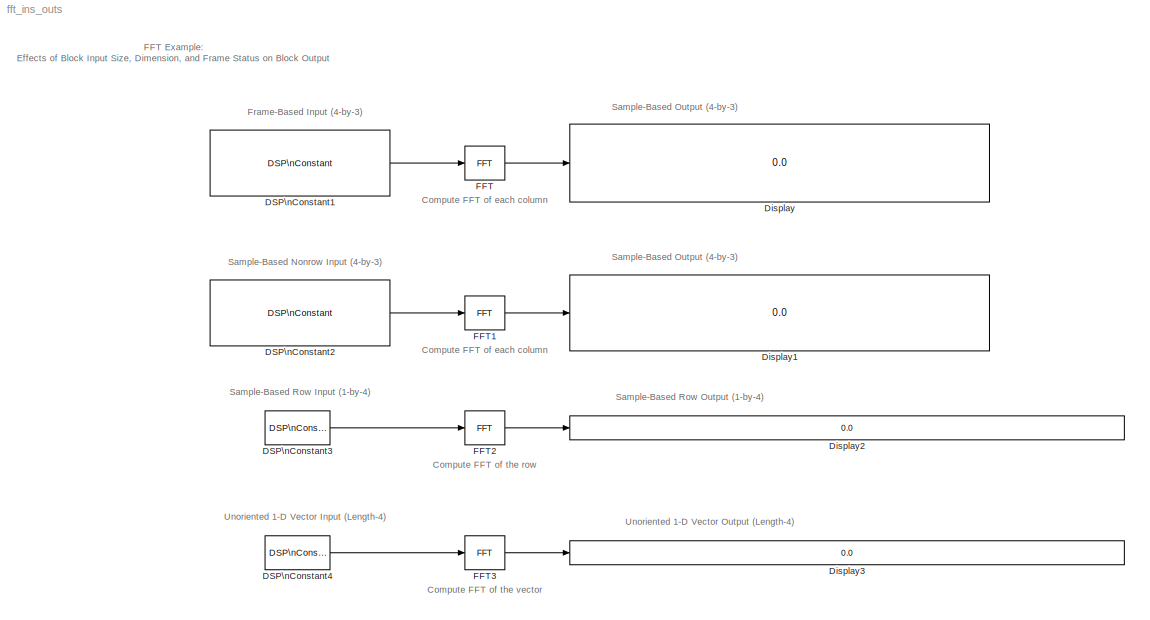
MODEL fft_ins_outs
KIND model
CONFIG AbsTol = auto
CONFIG FixedStep = auto
CONFIG MaxStep = auto
CONFIG MinStep = auto
CONFIG RelTol = 1e-3
CONFIG Solver = FixedStepDiscrete
CONFIG SolverMode = Auto
CONFIG StartTime = 0.0
CONFIG StopTime = 1
BLOCK [Reference] DSP\nConstant1  REF=dspsrcs4/DSP\nConstant
  FramebasedOutput = on
  InterpretAs1D = off
  Ports = [0, 1]
  SampleMode = Discrete
  SourceBlock = dspsrcs4/DSP\nConstant
  SourceType = DSP Constant
  Ts = 1
  Value = [1 2 3 4; 2 4 6 8; 3 6 9 12]'
  additionalParams = off
  continuousOutput = Sample-based
  dataType = Inherit from 'Constant value'
  discreteOutput = Frame-based
  fracBitsMode = Best precision
  framePeriod = 1
  numFracBits = 15
  sampTime = 1
  udDataType = sfix(16)
  wordLen = 16
BLOCK [Reference] DSP\nConstant2  REF=dspsrcs4/DSP\nConstant
  FramebasedOutput = off
  InterpretAs1D = off
  Ports = [0, 1]
  SampleMode = Discrete
  SourceBlock = dspsrcs4/DSP\nConstant
  SourceType = DSP Constant
  Ts = 1
  Value = [1 2 3 4; 2 4 6 8; 3 6 9 12]'
  additionalParams = off
  continuousOutput = Sample-based
  dataType = Inherit from 'Constant value'
  discreteOutput = Sample-based
  fracBitsMode = Best precision
  framePeriod = 1
  numFracBits = 15
  sampTime = 1
  udDataType = sfix(16)
  wordLen = 16
BLOCK [Reference] DSP\nConstant3  REF=dspsrcs4/DSP\nConstant
  FramebasedOutput = off
  InterpretAs1D = off
  Ports = [0, 1]
  SampleMode = Discrete
  SourceBlock = dspsrcs4/DSP\nConstant
  SourceType = DSP Constant
  Ts = 1
  Value = [1 2 3 4]
  additionalParams = off
  continuousOutput = Sample-based
  dataType = Inherit from 'Constant value'
  discreteOutput = Sample-based
  fracBitsMode = Best precision
  framePeriod = 1
  numFracBits = 15
  sampTime = 1
  udDataType = sfix(16)
  wordLen = 16
BLOCK [Reference] DSP\nConstant4  REF=dspsrcs4/DSP\nConstant
  FramebasedOutput = off
  InterpretAs1D = on
  Ports = [0, 1]
  SampleMode = Discrete
  SourceBlock = dspsrcs4/DSP\nConstant
  SourceType = DSP Constant
  Ts = 1
  Value = [1 2 3 4]
  additionalParams = off
  continuousOutput = Sample-based (interpret vectors as 1-D)
  dataType = Inherit from 'Constant value'
  discreteOutput = Sample-based (interpret vectors as 1-D)
  fracBitsMode = Best precision
  framePeriod = 1
  numFracBits = 15
  sampTime = 1
  udDataType = sfix(16)
  wordLen = 16
BLOCK [Display] Display
  Decimation = 1
  Ports = [1]
BLOCK [Display] Display1
  Decimation = 1
  Ports = [1]
BLOCK [Display] Display2
  Decimation = 1
  Ports = [1]
BLOCK [Display] Display3
  Decimation = 1
  Ports = [1]
BLOCK [Reference] FFT  REF=dspxfrm3/FFT
  BitRevOrder = off
  CompMethod = Table lookup
  Ports = [1, 1]
  SourceBlock = dspxfrm3/FFT
  SourceType = FFT
  TableOpt = Speed
BLOCK [Reference] FFT1  REF=dspxfrm3/FFT
  BitRevOrder = off
  CompMethod = Table lookup
  Ports = [1, 1]
  SourceBlock = dspxfrm3/FFT
  SourceType = FFT
  TableOpt = Speed
BLOCK [Reference] FFT2  REF=dspxfrm3/FFT
  BitRevOrder = off
  CompMethod = Table lookup
  Ports = [1, 1]
  SourceBlock = dspxfrm3/FFT
  SourceType = FFT
  TableOpt = Speed
BLOCK [Reference] FFT3  REF=dspxfrm3/FFT
  BitRevOrder = off
  CompMethod = Table lookup
  Ports = [1, 1]
  SourceBlock = dspxfrm3/FFT
  SourceType = FFT
  TableOpt = Speed
ANNOTATION (root): Compute FFT of each column
ANNOTATION (root): Compute FFT of the row
ANNOTATION (root): Compute FFT of the vector
ANNOTATION (root): FFT Example:\nEffects of Block Input Size, Dimension, and Frame Status on Block Output
ANNOTATION (root): Frame-Based Input (4-by-3)
ANNOTATION (root): Sample-Based Nonrow Input (4-by-3)
ANNOTATION (root): Sample-Based Output (4-by-3)
ANNOTATION (root): Sample-Based Row Input (1-by-4)
ANNOTATION (root): Sample-Based Row Output (1-by-4)
ANNOTATION (root): Unoriented 1-D Vector Input (Length-4)
ANNOTATION (root): Unoriented 1-D Vector Output (Length-4)
LINE DSP\nConstant1:1 -> FFT:1
LINE DSP\nConstant2:1 -> FFT1:1
LINE DSP\nConstant3:1 -> FFT2:1
LINE DSP\nConstant4:1 -> FFT3:1
LINE FFT1:1 -> Display1:1
LINE FFT2:1 -> Display2:1
LINE FFT3:1 -> Display3:1
LINE FFT:1 -> Display:1
